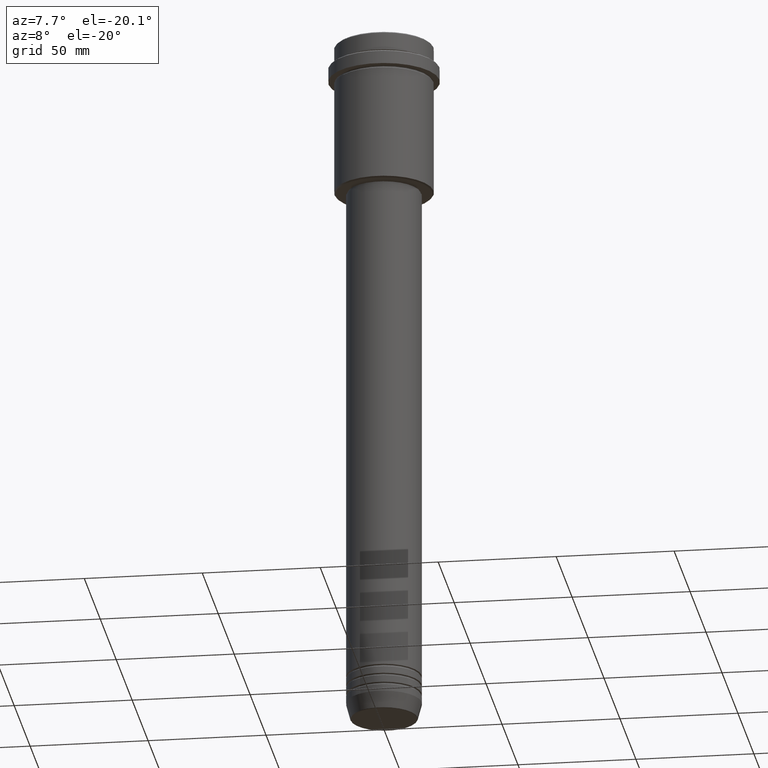
[diagram: clean part render]
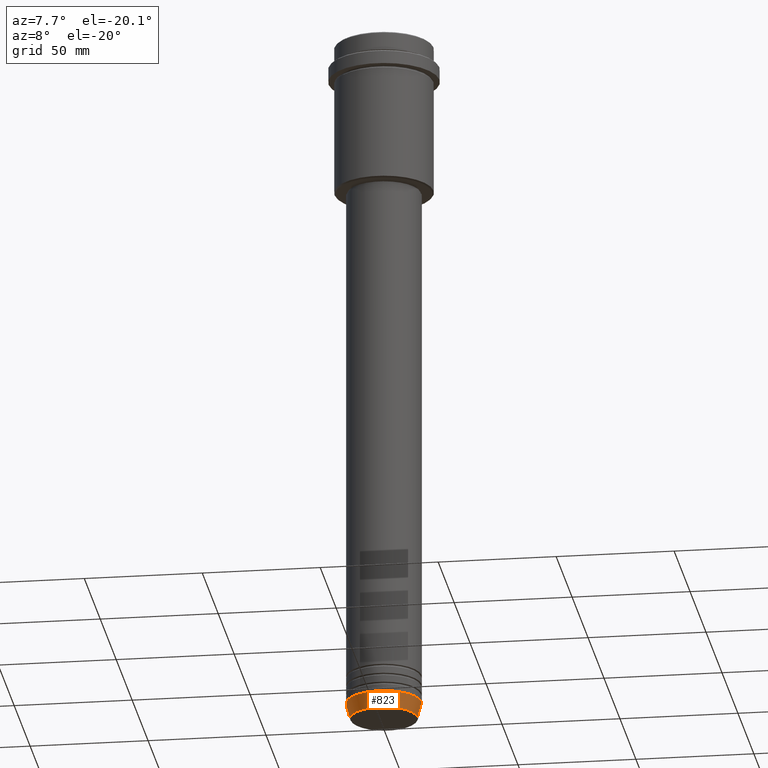
[diagram: same view with one face highlighted and labeled with its STEP entity id]
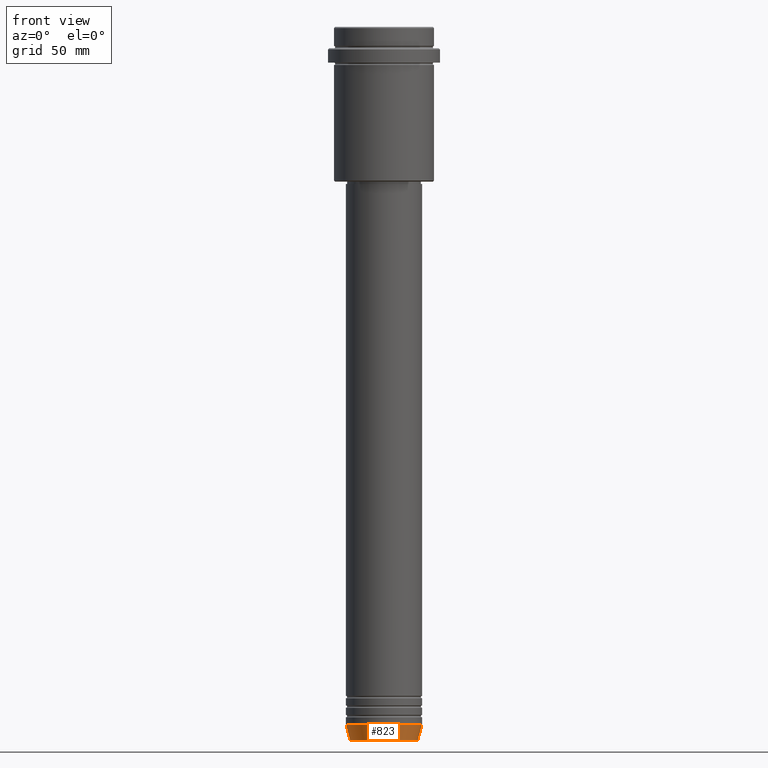
[diagram: same view with one face highlighted and labeled with its STEP entity id]
A machine part, auxiliary view. The second image highlights one B-rep face of the part: STEP entity #823.
A second angle (front view) of the same face is appended — the face is thin or edge-on in the first view.
In plain terms, the highlighted conical surface has half-angle 15 deg.
Its self-contained STEP definition (entity closure, byte-faithful):
#15 = ORIENTED_EDGE ( 'NONE', *, *, #1003, .F. ) ;
#19 = DIRECTION ( 'NONE',  ( -0.000000000000000000, -0.000000000000000000, 1.000000000000000000 ) ) ;
#181 = CARTESIAN_POINT ( 'NONE',  ( 14.22365507213718772, 0.000000000000000000, -299.6294095225512137 ) ) ;
#192 = CIRCLE ( 'NONE', #1254, 16.00000000000000000 ) ;
#207 = DIRECTION ( 'NONE',  ( -0.000000000000000000, -0.000000000000000000, 1.000000000000000000 ) ) ;
#228 = CARTESIAN_POINT ( 'NONE',  ( 0.000000000000000000, 0.000000000000000000, -293.0000000000000000 ) ) ;
#318 = VERTEX_POINT ( 'NONE', #394 ) ;
#339 = ORIENTED_EDGE ( 'NONE', *, *, #532, .T. ) ;
#370 = DIRECTION ( 'NONE',  ( 0.2588190451025213501, 0.000000000000000000, 0.9659258262890680902 ) ) ;
#375 = CARTESIAN_POINT ( 'NONE',  ( 0.000000000000000000, 0.000000000000000000, -299.6294095225512137 ) ) ;
#394 = CARTESIAN_POINT ( 'NONE',  ( -16.00000000000000000, 1.959434878635765131E-15, -293.0000000000000000 ) ) ;
#413 = DIRECTION ( 'NONE',  ( 1.000000000000000000, 0.000000000000000000, 0.000000000000000000 ) ) ;
#426 = EDGE_CURVE ( 'NONE', #318, #1204, #192, .T. ) ;
#428 = DIRECTION ( 'NONE',  ( 1.000000000000000000, 0.000000000000000000, 0.000000000000000000 ) ) ;
#439 = CARTESIAN_POINT ( 'NONE',  ( 0.000000000000000000, 0.000000000000000000, -293.0000000000000000 ) ) ;
#452 = EDGE_LOOP ( 'NONE', ( #15, #907, #339, #467 ) ) ;
#467 = ORIENTED_EDGE ( 'NONE', *, *, #426, .F. ) ;
#483 = CARTESIAN_POINT ( 'NONE',  ( -16.00000000000000000, 1.959434878635765131E-15, -293.0000000000000000 ) ) ;
#518 = CONICAL_SURFACE ( 'NONE', #850, 16.00000000000000000, 0.2617993877991500740 ) ;
#522 = VERTEX_POINT ( 'NONE', #786 ) ;
#532 = EDGE_CURVE ( 'NONE', #665, #1204, #1012, .T. ) ;
#565 = DIRECTION ( 'NONE',  ( -0.2588190451025213501, 3.169619151431772337E-17, 0.9659258262890680902 ) ) ;
#665 = VERTEX_POINT ( 'NONE', #181 ) ;
#698 = AXIS2_PLACEMENT_3D ( 'NONE', #375, #19, #1342 ) ;
#773 = VECTOR ( 'NONE', #370, 1000.000000000000000 ) ;
#786 = CARTESIAN_POINT ( 'NONE',  ( -14.22365507213718772, 1.850665122131323337E-15, -299.6294095225512137 ) ) ;
#823 = ADVANCED_FACE ( 'NONE', ( #1090 ), #518, .T. ) ;
#834 = DIRECTION ( 'NONE',  ( -0.000000000000000000, -0.000000000000000000, 1.000000000000000000 ) ) ;
#850 = AXIS2_PLACEMENT_3D ( 'NONE', #439, #207, #428 ) ;
#882 = VECTOR ( 'NONE', #565, 1000.000000000000000 ) ;
#907 = ORIENTED_EDGE ( 'NONE', *, *, #1065, .T. ) ;
#1003 = EDGE_CURVE ( 'NONE', #522, #318, #1336, .T. ) ;
#1012 = LINE ( 'NONE', #1018, #773 ) ;
#1018 = CARTESIAN_POINT ( 'NONE',  ( 16.00000000000000000, 0.000000000000000000, -293.0000000000000000 ) ) ;
#1065 = EDGE_CURVE ( 'NONE', #522, #665, #1317, .T. ) ;
#1090 = FACE_OUTER_BOUND ( 'NONE', #452, .T. ) ;
#1204 = VERTEX_POINT ( 'NONE', #1357 ) ;
#1254 = AXIS2_PLACEMENT_3D ( 'NONE', #228, #834, #413 ) ;
#1317 = CIRCLE ( 'NONE', #698, 14.22365507213718772 ) ;
#1336 = LINE ( 'NONE', #483, #882 ) ;
#1342 = DIRECTION ( 'NONE',  ( 1.000000000000000000, 0.000000000000000000, 0.000000000000000000 ) ) ;
#1357 = CARTESIAN_POINT ( 'NONE',  ( 16.00000000000000000, 0.000000000000000000, -293.0000000000000000 ) ) ;